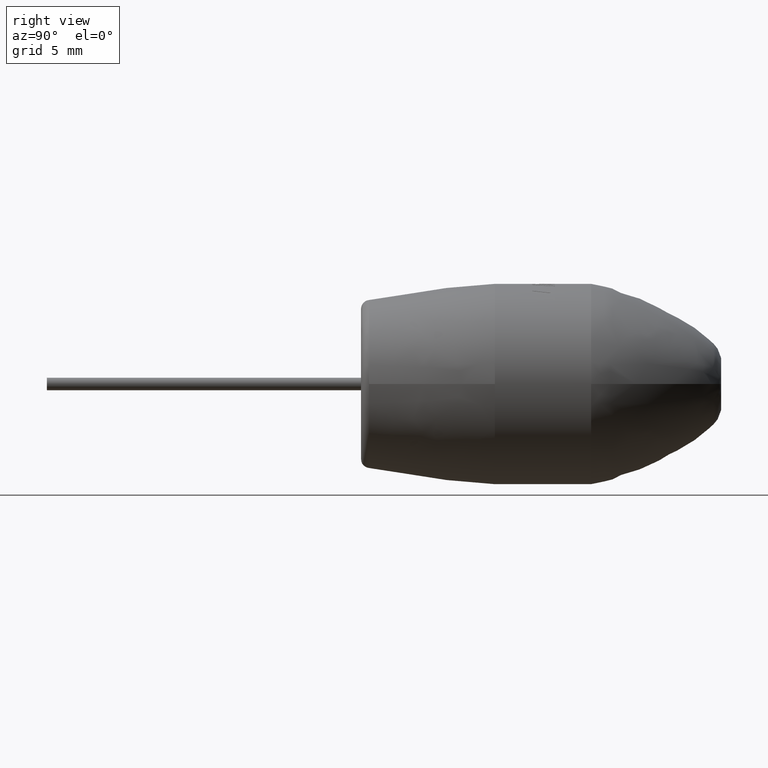
[diagram: clean part render]
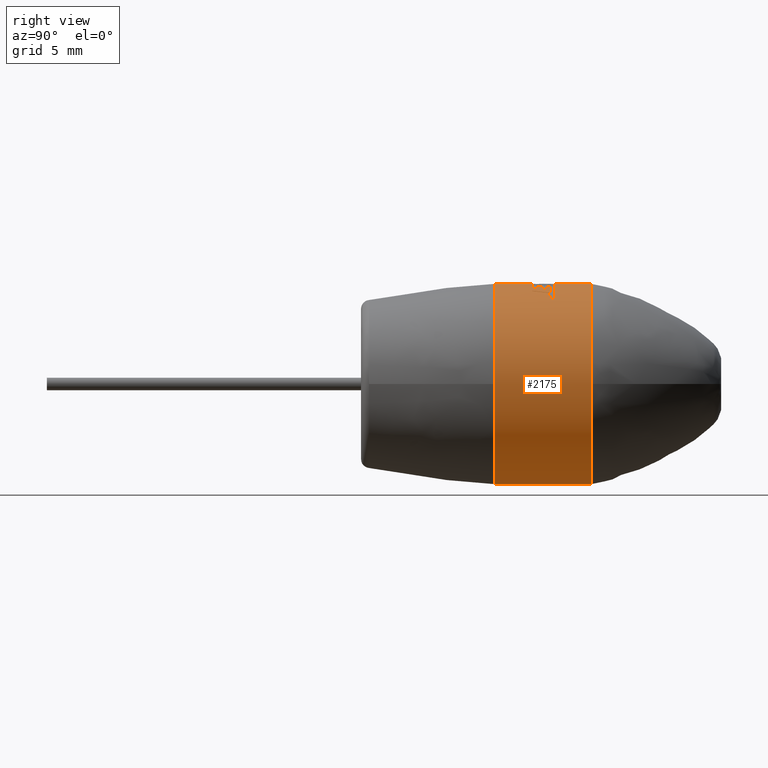
[diagram: same view with one face highlighted and labeled with its STEP entity id]
A machine part, right view. The second image highlights one B-rep face of the part: STEP entity #2175.
In plain terms, the highlighted cylindrical surface (partial cylindrical patch) has radius 4.45 mm, axis along (-0, -1, -0).
Its self-contained STEP definition (entity closure, byte-faithful):
#35 = CARTESIAN_POINT ( 'NONE',  ( 0.4946838417474491700, 8.506531242297525000, 4.422418783506824300 ) ) ;
#72 = EDGE_CURVE ( 'NONE', #266, #2234, #748, .T. ) ;
#76 = CARTESIAN_POINT ( 'NONE',  ( 0.4919056454715069500, 7.604746150764514200, 4.422728664066252000 ) ) ;
#78 = EDGE_CURVE ( 'NONE', #2897, #3358, #1538, .T. ) ;
#119 = ORIENTED_EDGE ( 'NONE', *, *, #1764, .F. ) ;
#128 = ORIENTED_EDGE ( 'NONE', *, *, #488, .F. ) ;
#147 = LINE ( 'NONE', #283, #1661 ) ;
#161 = CARTESIAN_POINT ( 'NONE',  ( 1.388579502531268600, 7.732628669408849300, 4.227845332898611200 ) ) ;
#163 = AXIS2_PLACEMENT_3D ( 'NONE', #676, #384, #2084 ) ;
#172 = CARTESIAN_POINT ( 'NONE',  ( 0.9949742120080948800, 7.963576136324040700, 4.337406437498996700 ) ) ;
#175 = VERTEX_POINT ( 'NONE', #3143 ) ;
#234 = EDGE_CURVE ( 'NONE', #1987, #1770, #147, .T. ) ;
#238 = LINE ( 'NONE', #927, #2197 ) ;
#245 = B_SPLINE_CURVE_WITH_KNOTS ( 'NONE', 3,
 ( #3596, #2120, #172, #1846 ),
 .UNSPECIFIED., .F., .F.,
 ( 4, 4 ),
 ( 0.0000000000000000000, 1.000000000000000000 ),
 .UNSPECIFIED. ) ;
#252 = CARTESIAN_POINT ( 'NONE',  ( 1.562906949584479800, 8.419606399378579900, 4.166511954493894400 ) ) ;
#254 = ORIENTED_EDGE ( 'NONE', *, *, #806, .T. ) ;
#257 = CARTESIAN_POINT ( 'NONE',  ( 1.484073355134235100, 8.233404122937400900, 4.195238524396510900 ) ) ;
#259 = VERTEX_POINT ( 'NONE', #2909 ) ;
#262 = CARTESIAN_POINT ( 'NONE',  ( 1.450583183327718500, 8.109187534407029200, 4.206973169489836000 ) ) ;
#265 = CARTESIAN_POINT ( 'NONE',  ( 1.271746608458683900, 8.420472816124405600, 4.267185517117510200 ) ) ;
#266 = VERTEX_POINT ( 'NONE', #866 ) ;
#271 = CARTESIAN_POINT ( 'NONE',  ( 0.0000000000000000000, 10.22080000000000200, -4.449999999999999300 ) ) ;
#280 = AXIS2_PLACEMENT_3D ( 'NONE', #509, #1341, #2819 ) ;
#283 = CARTESIAN_POINT ( 'NONE',  ( 5.449678256205721800E-016, 16.00000000000000000, 4.450000000000000200 ) ) ;
#291 = AXIS2_PLACEMENT_3D ( 'NONE', #3039, #3591, #1042 ) ;
#295 = CARTESIAN_POINT ( 'NONE',  ( 0.01965237131322186000, 7.604746150764514200, 4.449956604766137000 ) ) ;
#296 = CARTESIAN_POINT ( 'NONE',  ( 0.007395987010997595800, 8.338033352284698600, 4.449999999921686800 ) ) ;
#297 = VERTEX_POINT ( 'NONE', #1787 ) ;
#315 = AXIS2_PLACEMENT_3D ( 'NONE', #872, #1729, #901 ) ;
#320 = ORIENTED_EDGE ( 'NONE', *, *, #1851, .T. ) ;
#325 = CARTESIAN_POINT ( 'NONE',  ( 0.0000000000000000000, 5.948800000000001200, 0.0000000000000000000 ) ) ;
#384 = DIRECTION ( 'NONE',  ( -0.0000000000000000000, -1.000000000000000000, -0.0000000000000000000 ) ) ;
#391 = VERTEX_POINT ( 'NONE', #1203 ) ;
#394 = CARTESIAN_POINT ( 'NONE',  ( 0.0000000000000000000, 7.604746150764514200, 0.0000000000000000000 ) ) ;
#425 = EDGE_CURVE ( 'NONE', #1223, #3537, #915, .T. ) ;
#428 = B_SPLINE_CURVE_WITH_KNOTS ( 'NONE', 3,
 ( #2613, #3193, #1428, #3165 ),
 .UNSPECIFIED., .F., .F.,
 ( 4, 4 ),
 ( 0.0000000000000000000, 1.000000000000000000 ),
 .UNSPECIFIED. ) ;
#438 = CARTESIAN_POINT ( 'NONE',  ( 0.4946838417474491700, 8.506531242297525000, 4.422418783506824300 ) ) ;
#450 = DIRECTION ( 'NONE',  ( -0.0000000000000000000, -1.000000000000000000, -0.0000000000000000000 ) ) ;
#461 = VERTEX_POINT ( 'NONE', #1445 ) ;
#485 = CARTESIAN_POINT ( 'NONE',  ( 1.894274767862562900, 7.604746150764514200, 4.026688851133053900 ) ) ;
#488 = EDGE_CURVE ( 'NONE', #3529, #2733, #238, .T. ) ;
#500 = CIRCLE ( 'NONE', #1035, 4.449999999999999300 ) ;
#509 = CARTESIAN_POINT ( 'NONE',  ( 0.0000000000000000000, 8.612821759519611900, 0.0000000000000000000 ) ) ;
#518 = EDGE_CURVE ( 'NONE', #1735, #1770, #1842, .T. ) ;
#534 = ORIENTED_EDGE ( 'NONE', *, *, #571, .F. ) ;
#557 = FACE_OUTER_BOUND ( 'NONE', #3659, .T. ) ;
#571 = EDGE_CURVE ( 'NONE', #1402, #2296, #1881, .T. ) ;
#594 = DIRECTION ( 'NONE',  ( -0.0000000000000000000, -1.000000000000000000, -0.0000000000000000000 ) ) ;
#620 = CARTESIAN_POINT ( 'NONE',  ( 1.845918588710608700, 8.418181100462566800, 4.049084410561557800 ) ) ;
#630 = CARTESIAN_POINT ( 'NONE',  ( 1.774984807267662200, 8.147036112379527900, 4.081422088035392200 ) ) ;
#632 = B_SPLINE_CURVE_WITH_KNOTS ( 'NONE', 3,
 ( #2228, #1381, #3686, #2242 ),
 .UNSPECIFIED., .F., .F.,
 ( 4, 4 ),
 ( 0.0000000000000000000, 0.9535824357686437700 ),
 .UNSPECIFIED. ) ;
#654 = AXIS2_PLACEMENT_3D ( 'NONE', #747, #1905, #2193 ) ;
#661 = EDGE_CURVE ( 'NONE', #297, #391, #1588, .T. ) ;
#663 = ORIENTED_EDGE ( 'NONE', *, *, #3628, .T. ) ;
#667 = CARTESIAN_POINT ( 'NONE',  ( 2.389539844810840500, 8.612821759519611900, 3.754011098819685500 ) ) ;
#671 = DIRECTION ( 'NONE',  ( -0.0000000000000000000, -1.000000000000000000, -0.0000000000000000000 ) ) ;
#676 = CARTESIAN_POINT ( 'NONE',  ( 0.0000000000000000000, 7.604746150764514200, 0.0000000000000000000 ) ) ;
#679 = B_SPLINE_CURVE_WITH_KNOTS ( 'NONE', 3,
 ( #2548, #2599, #1734, #2635 ),
 .UNSPECIFIED., .F., .F.,
 ( 4, 4 ),
 ( 0.0000000000000000000, 1.000000000000000000 ),
 .UNSPECIFIED. ) ;
#689 = EDGE_CURVE ( 'NONE', #2234, #259, #2098, .T. ) ;
#695 = AXIS2_PLACEMENT_3D ( 'NONE', #1181, #3705, #3480 ) ;
#703 = VERTEX_POINT ( 'NONE', #913 ) ;
#707 = CARTESIAN_POINT ( 'NONE',  ( -5.018557794690432700E-011, 8.200639148900274100, 4.449999999968005300 ) ) ;
#747 = CARTESIAN_POINT ( 'NONE',  ( 0.0000000000000000000, 16.00000000000000000, 0.0000000000000000000 ) ) ;
#748 = B_SPLINE_CURVE_WITH_KNOTS ( 'NONE', 3,
 ( #2135, #3020, #1583, #3323 ),
 .UNSPECIFIED., .F., .F.,
 ( 4, 4 ),
 ( 0.0000000000000000000, 1.000000000000000000 ),
 .UNSPECIFIED. ) ;
#764 = CIRCLE ( 'NONE', #163, 4.450000000000001100 ) ;
#769 = CARTESIAN_POINT ( 'NONE',  ( 0.4088978527011152300, 8.205936203721831700, 4.432014650544069000 ) ) ;
#770 = CARTESIAN_POINT ( 'NONE',  ( 2.103126806645058400, 8.418181100460064000, 3.921652411314770600 ) ) ;
#777 = VERTEX_POINT ( 'NONE', #2942 ) ;
#782 = ORIENTED_EDGE ( 'NONE', *, *, #234, .T. ) ;
#786 = ORIENTED_EDGE ( 'NONE', *, *, #2503, .F. ) ;
#787 = CARTESIAN_POINT ( 'NONE',  ( 1.845918588710608700, 8.418181100462566800, 4.049084410561557800 ) ) ;
#806 = EDGE_CURVE ( 'NONE', #1332, #461, #764, .T. ) ;
#835 = CARTESIAN_POINT ( 'NONE',  ( 2.389539844810840500, 8.612821759519611900, 3.754011098819685500 ) ) ;
#838 = ORIENTED_EDGE ( 'NONE', *, *, #2552, .F. ) ;
#859 = DIRECTION ( 'NONE',  ( -0.0000000000000000000, -1.000000000000000000, -0.0000000000000000000 ) ) ;
#866 = CARTESIAN_POINT ( 'NONE',  ( 1.562906949584479800, 8.419606399378579900, 4.166511954493894400 ) ) ;
#872 = CARTESIAN_POINT ( 'NONE',  ( 0.0000000000000000000, 8.612821759519611900, 0.0000000000000000000 ) ) ;
#885 = DIRECTION ( 'NONE',  ( 0.0000000000000000000, 0.0000000000000000000, -1.000000000000000000 ) ) ;
#896 = VERTEX_POINT ( 'NONE', #2686 ) ;
#901 = DIRECTION ( 'NONE',  ( -0.09135912356441142100, 0.0000000000000000000, 0.9958180107537434300 ) ) ;
#913 = CARTESIAN_POINT ( 'NONE',  ( 1.069864503668400500, 8.233404122937400900, 4.319477971212536200 ) ) ;
#915 = CIRCLE ( 'NONE', #3132, 4.450000000000000200 ) ;
#927 = CARTESIAN_POINT ( 'NONE',  ( 0.0000000000000000000, 16.00000000000000000, -4.450000000000000200 ) ) ;
#938 = EDGE_CURVE ( 'NONE', #2042, #461, #1436, .T. ) ;
#966 = VECTOR ( 'NONE', #3006, 1000.000000000000000 ) ;
#990 = ORIENTED_EDGE ( 'NONE', *, *, #2559, .F. ) ;
#993 = CARTESIAN_POINT ( 'NONE',  ( 0.0000000000000000000, 10.22080000000000200, 0.0000000000000000000 ) ) ;
#1033 = CIRCLE ( 'NONE', #291, 4.450000000000000200 ) ;
#1035 = AXIS2_PLACEMENT_3D ( 'NONE', #3427, #2542, #1690 ) ;
#1042 = DIRECTION ( 'NONE',  ( 0.07646619451673346300, 0.0000000000000000000, 0.9970721744668884500 ) ) ;
#1068 = EDGE_CURVE ( 'NONE', #1989, #3527, #1033, .T. ) ;
#1090 = EDGE_CURVE ( 'NONE', #2617, #3222, #2974, .T. ) ;
#1094 = VERTEX_POINT ( 'NONE', #3607 ) ;
#1105 = CARTESIAN_POINT ( 'NONE',  ( 2.342159155940371800, 8.418159189099178300, 3.783753492002972100 ) ) ;
#1143 = ORIENTED_EDGE ( 'NONE', *, *, #1400, .F. ) ;
#1147 = CARTESIAN_POINT ( 'NONE',  ( 1.614820595703347700, 8.612821759519611900, 4.146667872363579500 ) ) ;
#1148 = CARTESIAN_POINT ( 'NONE',  ( 0.02218786922370886300, 8.612821759519611900, 4.449944684876353300 ) ) ;
#1170 = CARTESIAN_POINT ( 'NONE',  ( 0.01479197408475090700, 8.475427555902088600, 4.449981561549156700 ) ) ;
#1180 = ORIENTED_EDGE ( 'NONE', *, *, #2122, .F. ) ;
#1181 = CARTESIAN_POINT ( 'NONE',  ( 0.0000000000000000000, 8.612821759519611900, 0.0000000000000000000 ) ) ;
#1189 = DIRECTION ( 'NONE',  ( 0.3664419108108632500, 0.0000000000000000000, 0.9304409309576203700 ) ) ;
#1200 = CARTESIAN_POINT ( 'NONE',  ( 0.0000000000000000000, 7.604746150764514200, 0.0000000000000000000 ) ) ;
#1203 = CARTESIAN_POINT ( 'NONE',  ( 2.342159155940371800, 8.418159189099178300, 3.783753492002972100 ) ) ;
#1223 = VERTEX_POINT ( 'NONE', #295 ) ;
#1248 = EDGE_CURVE ( 'NONE', #1332, #1989, #1821, .T. ) ;
#1259 = DIRECTION ( 'NONE',  ( -0.0000000000000000000, -1.000000000000000000, -0.0000000000000000000 ) ) ;
#1275 = CARTESIAN_POINT ( 'NONE',  ( 0.0000000000000000000, 5.948800000000001200, 0.0000000000000000000 ) ) ;
#1286 = VERTEX_POINT ( 'NONE', #2048 ) ;
#1303 = CARTESIAN_POINT ( 'NONE',  ( 5.449678256205721800E-016, 16.00000000000000000, 4.450000000000000200 ) ) ;
#1311 = CIRCLE ( 'NONE', #3573, 4.450000000000000200 ) ;
#1324 = DIRECTION ( 'NONE',  ( -0.0000000000000000000, -1.000000000000000000, -0.0000000000000000000 ) ) ;
#1332 = VERTEX_POINT ( 'NONE', #76 ) ;
#1338 = CARTESIAN_POINT ( 'NONE',  ( 2.358014828068803600, 8.483046712576463500, 3.773938764979215300 ) ) ;
#1339 = DIRECTION ( 'NONE',  ( 0.1375917790808720800, 0.0000000000000000000, 0.9904890218116305700 ) ) ;
#1341 = DIRECTION ( 'NONE',  ( -0.0000000000000000000, -1.000000000000000000, -0.0000000000000000000 ) ) ;
#1352 = CYLINDRICAL_SURFACE ( 'NONE', #654, 4.450000000000000200 ) ;
#1381 = CARTESIAN_POINT ( 'NONE',  ( 0.2270712675944245600, 8.383904013653880900, 4.445652820121064300 ) ) ;
#1398 = CARTESIAN_POINT ( 'NONE',  ( 5.449678256205721800E-016, 7.604746150764514200, 4.450000000000000200 ) ) ;
#1400 = EDGE_CURVE ( 'NONE', #2733, #896, #1311, .T. ) ;
#1402 = VERTEX_POINT ( 'NONE', #667 ) ;
#1428 = CARTESIAN_POINT ( 'NONE',  ( 0.7080167958499931100, 7.940771367893335200, 4.394377538358650500 ) ) ;
#1436 = B_SPLINE_CURVE_WITH_KNOTS ( 'NONE', 3,
 ( #3065, #769, #1611, #3631 ),
 .UNSPECIFIED., .F., .F.,
 ( 4, 4 ),
 ( 0.0000000000000000000, 1.000000000000000000 ),
 .UNSPECIFIED. ) ;
#1437 = AXIS2_PLACEMENT_3D ( 'NONE', #3024, #2187, #1339 ) ;
#1445 = CARTESIAN_POINT ( 'NONE',  ( 0.2366337199741964700, 7.604746150764514200, 4.443703914818265800 ) ) ;
#1459 = CARTESIAN_POINT ( 'NONE',  ( 1.484073355134235100, 8.233404122937400900, 4.195238524396510900 ) ) ;
#1465 = CARTESIAN_POINT ( 'NONE',  ( 0.01965237131322186000, 7.604746150764514200, 4.449956604766137000 ) ) ;
#1471 = VERTEX_POINT ( 'NONE', #3595 ) ;
#1475 = CIRCLE ( 'NONE', #3649, 4.450000000000000200 ) ;
#1486 = CARTESIAN_POINT ( 'NONE',  ( 2.263932695904203200, 8.418166492889442400, 3.832175996269635100 ) ) ;
#1498 = VECTOR ( 'NONE', #450, 1000.000000000000000 ) ;
#1517 = ORIENTED_EDGE ( 'NONE', *, *, #2597, .F. ) ;
#1538 = LINE ( 'NONE', #1871, #1498 ) ;
#1543 = DIRECTION ( 'NONE',  ( -0.05594639297538302900, 0.0000000000000000000, 0.9984337740246189700 ) ) ;
#1544 = EDGE_CURVE ( 'NONE', #1094, #297, #2707, .T. ) ;
#1569 = CARTESIAN_POINT ( 'NONE',  ( 5.449678256205721800E-016, 10.22080000000000200, 4.449999999999999300 ) ) ;
#1575 = FACE_BOUND ( 'NONE', #3574, .T. ) ;
#1583 = CARTESIAN_POINT ( 'NONE',  ( 1.752966453158286500, 8.418656200427184500, 4.091459934872393200 ) ) ;
#1588 = B_SPLINE_CURVE_WITH_KNOTS ( 'NONE', 3,
 ( #1995, #3516, #1486, #2060 ),
 .UNSPECIFIED., .F., .F.,
 ( 4, 4 ),
 ( 0.0000000000000000000, 1.000000000000000000 ),
 .UNSPECIFIED. ) ;
#1611 = CARTESIAN_POINT ( 'NONE',  ( 0.3228325975620551200, 7.905341189340206600, 4.439113698761520500 ) ) ;
#1643 = ORIENTED_EDGE ( 'NONE', *, *, #3602, .F. ) ;
#1661 = VECTOR ( 'NONE', #859, 1000.000000000000000 ) ;
#1662 = CARTESIAN_POINT ( 'NONE',  ( 0.6122834169098806400, 7.604746150764514200, 4.407676147061755100 ) ) ;
#1679 = ORIENTED_EDGE ( 'NONE', *, *, #2044, .F. ) ;
#1690 = DIRECTION ( 'NONE',  ( 0.0000000000000000000, 0.0000000000000000000, -1.000000000000000000 ) ) ;
#1711 = ORIENTED_EDGE ( 'NONE', *, *, #72, .F. ) ;
#1729 = DIRECTION ( 'NONE',  ( -0.0000000000000000000, -1.000000000000000000, -0.0000000000000000000 ) ) ;
#1734 = CARTESIAN_POINT ( 'NONE',  ( 1.105144063355162600, 8.358405392160774400, 4.310624937524458700 ) ) ;
#1735 = VERTEX_POINT ( 'NONE', #1148 ) ;
#1764 = EDGE_CURVE ( 'NONE', #1471, #266, #3129, .T. ) ;
#1770 = VERTEX_POINT ( 'NONE', #2233 ) ;
#1776 = B_SPLINE_CURVE_WITH_KNOTS ( 'NONE', 3,
 ( #1465, #2968, #2324, #35 ),
 .UNSPECIFIED., .F., .F.,
 ( 4, 4 ),
 ( 0.0000000000000000000, 1.000000000000000000 ),
 .UNSPECIFIED. ) ;
#1787 = CARTESIAN_POINT ( 'NONE',  ( 2.103126806645058400, 8.418181100460064000, 3.921652411314770600 ) ) ;
#1791 = CARTESIAN_POINT ( 'NONE',  ( 0.9484329702689341400, 7.796569928735947600, 4.347755156503968300 ) ) ;
#1821 = B_SPLINE_CURVE_WITH_KNOTS ( 'NONE', 3,
 ( #2892, #2878, #2601, #3192 ),
 .UNSPECIFIED., .F., .F.,
 ( 4, 4 ),
 ( 0.0000000000000000000, 1.000000000000000000 ),
 .UNSPECIFIED. ) ;
#1825 = EDGE_CURVE ( 'NONE', #703, #1471, #679, .T. ) ;
#1842 = CIRCLE ( 'NONE', #315, 4.449999999999999300 ) ;
#1846 = CARTESIAN_POINT ( 'NONE',  ( 1.018180588921109100, 8.047079240137435400, 4.331952018241230100 ) ) ;
#1851 = EDGE_CURVE ( 'NONE', #1094, #259, #3033, .T. ) ;
#1858 = VERTEX_POINT ( 'NONE', #2014 ) ;
#1871 = CARTESIAN_POINT ( 'NONE',  ( 5.449678256205721800E-016, 16.00000000000000000, 4.450000000000000200 ) ) ;
#1878 = EDGE_CURVE ( 'NONE', #3529, #1858, #2158, .T. ) ;
#1879 = CARTESIAN_POINT ( 'NONE',  ( 2.034445248460541800, 8.147036112386034600, 3.958485361048727800 ) ) ;
#1881 = CIRCLE ( 'NONE', #695, 4.450000000000000200 ) ;
#1905 = DIRECTION ( 'NONE',  ( -0.0000000000000000000, -1.000000000000000000, -0.0000000000000000000 ) ) ;
#1917 = CARTESIAN_POINT ( 'NONE',  ( 0.3402745655994647300, 8.612821759519611900, 4.436971176377653600 ) ) ;
#1935 = CARTESIAN_POINT ( 'NONE',  ( 0.0000000000000000000, 7.796569928735947600, 0.0000000000000000000 ) ) ;
#1951 = CARTESIAN_POINT ( 'NONE',  ( 1.418730699544806400, 8.420039610031707900, 4.220594137771683100 ) ) ;
#1957 = DIRECTION ( 'NONE',  ( 0.2131310045548169000, 0.0000000000000000000, 0.9770236306750490500 ) ) ;
#1987 = VERTEX_POINT ( 'NONE', #1569 ) ;
#1989 = VERTEX_POINT ( 'NONE', #2997 ) ;
#1995 = CARTESIAN_POINT ( 'NONE',  ( 2.103126806645058400, 8.418181100460064000, 3.921652411314770600 ) ) ;
#2002 = CARTESIAN_POINT ( 'NONE',  ( 1.122742311527996900, 8.420906026777533500, 4.306036425984430600 ) ) ;
#2008 = CARTESIAN_POINT ( 'NONE',  ( 0.0000000000000000000, 8.047079240137435400, 0.0000000000000000000 ) ) ;
#2011 = EDGE_CURVE ( 'NONE', #3537, #1286, #3380, .T. ) ;
#2014 = CARTESIAN_POINT ( 'NONE',  ( 4.449999999999999300, 10.22080000000000200, 0.0000000000000000000 ) ) ;
#2042 = VERTEX_POINT ( 'NONE', #438 ) ;
#2044 = EDGE_CURVE ( 'NONE', #2617, #175, #3189, .T. ) ;
#2048 = CARTESIAN_POINT ( 'NONE',  ( 5.449678256205721800E-016, 5.948800000000001200, 4.450000000000000200 ) ) ;
#2060 = CARTESIAN_POINT ( 'NONE',  ( 2.342159155940371800, 8.418159189099178300, 3.783753492002972100 ) ) ;
#2084 = DIRECTION ( 'NONE',  ( 0.05317611684813402400, 0.0000000000000000000, 0.9985851493973628700 ) ) ;
#2098 = B_SPLINE_CURVE_WITH_KNOTS ( 'NONE', 3,
 ( #620, #630, #2616, #2934 ),
 .UNSPECIFIED., .F., .F.,
 ( 4, 4 ),
 ( 0.0000000000000000000, 1.000000000000000000 ),
 .UNSPECIFIED. ) ;
#2120 = CARTESIAN_POINT ( 'NONE',  ( 0.9717240049947301100, 7.880073032549343100, 4.342674377009617900 ) ) ;
#2122 = EDGE_CURVE ( 'NONE', #3388, #2972, #245, .T. ) ;
#2127 = CARTESIAN_POINT ( 'NONE',  ( 1.018180588921109100, 8.047079240137435400, 4.331952018241230100 ) ) ;
#2135 = CARTESIAN_POINT ( 'NONE',  ( 1.562906949584479800, 8.419606399378579900, 4.166511954493894400 ) ) ;
#2145 = DIRECTION ( 'NONE',  ( 0.0000000000000000000, 0.0000000000000000000, -1.000000000000000000 ) ) ;
#2155 = CARTESIAN_POINT ( 'NONE',  ( 1.405794053546186600, 7.796569928735947600, 4.222113579596620700 ) ) ;
#2158 = CIRCLE ( 'NONE', #2592, 4.449999999999999300 ) ;
#2170 = ORIENTED_EDGE ( 'NONE', *, *, #1878, .T. ) ;
#2175 = ADVANCED_FACE ( 'NONE', ( #1575, #557 ), #1352, .T. ) ;
#2187 = DIRECTION ( 'NONE',  ( -0.0000000000000000000, -1.000000000000000000, -0.0000000000000000000 ) ) ;
#2193 = DIRECTION ( 'NONE',  ( 0.0000000000000000000, 0.0000000000000000000, -1.000000000000000000 ) ) ;
#2197 = VECTOR ( 'NONE', #3601, 1000.000000000000000 ) ;
#2228 = CARTESIAN_POINT ( 'NONE',  ( 0.3402745655994647300, 8.612821759519611900, 4.436971176377653600 ) ) ;
#2233 = CARTESIAN_POINT ( 'NONE',  ( 5.449678256205721800E-016, 8.612821759519611900, 4.450000000000000200 ) ) ;
#2234 = VERTEX_POINT ( 'NONE', #787 ) ;
#2242 = CARTESIAN_POINT ( 'NONE',  ( -1.759929833002849700E-010, 7.926068701618295800, 4.449999992478763200 ) ) ;
#2244 = CIRCLE ( 'NONE', #3666, 4.450000000000000200 ) ;
#2278 = CARTESIAN_POINT ( 'NONE',  ( 0.02218786922370886300, 8.612821759519611900, 4.449944684876353300 ) ) ;
#2290 = DIRECTION ( 'NONE',  ( 0.2288046267238446900, 0.0000000000000000000, 0.9734723636497143500 ) ) ;
#2296 = VERTEX_POINT ( 'NONE', #1147 ) ;
#2324 = CARTESIAN_POINT ( 'NONE',  ( 0.3369819170787413700, 8.205935949304862500, 4.440059038255431500 ) ) ;
#2382 = EDGE_CURVE ( 'NONE', #1223, #2042, #1776, .T. ) ;
#2397 = DIRECTION ( 'NONE',  ( -0.0000000000000000000, -1.000000000000000000, -0.0000000000000000000 ) ) ;
#2409 = ORIENTED_EDGE ( 'NONE', *, *, #2382, .F. ) ;
#2439 = CARTESIAN_POINT ( 'NONE',  ( 1.371329896527054600, 7.668687410091616000, 4.233471803219393000 ) ) ;
#2441 = B_SPLINE_CURVE_WITH_KNOTS ( 'NONE', 3,
 ( #2893, #296, #1170, #2278 ),
 .UNSPECIFIED., .F., .F.,
 ( 4, 4 ),
 ( 0.4276689569734712400, 1.000000000000000000 ),
 .UNSPECIFIED. ) ;
#2470 = ORIENTED_EDGE ( 'NONE', *, *, #425, .T. ) ;
#2489 = CARTESIAN_POINT ( 'NONE',  ( 2.373808807026486400, 8.547934236042332000, 3.764024372780904800 ) ) ;
#2503 = EDGE_CURVE ( 'NONE', #3559, #703, #3202, .T. ) ;
#2524 = ORIENTED_EDGE ( 'NONE', *, *, #2011, .T. ) ;
#2542 = DIRECTION ( 'NONE',  ( -0.0000000000000000000, -1.000000000000000000, -0.0000000000000000000 ) ) ;
#2548 = CARTESIAN_POINT ( 'NONE',  ( 1.069864503668400500, 8.233404122937400900, 4.319477971212536200 ) ) ;
#2552 = EDGE_CURVE ( 'NONE', #175, #3388, #2244, .T. ) ;
#2559 = EDGE_CURVE ( 'NONE', #3527, #3358, #632, .T. ) ;
#2572 = ORIENTED_EDGE ( 'NONE', *, *, #3185, .F. ) ;
#2581 = EDGE_CURVE ( 'NONE', #1858, #1987, #500, .T. ) ;
#2591 = DIRECTION ( 'NONE',  ( -0.0000000000000000000, -1.000000000000000000, -0.0000000000000000000 ) ) ;
#2592 = AXIS2_PLACEMENT_3D ( 'NONE', #993, #2397, #3002 ) ;
#2597 = EDGE_CURVE ( 'NONE', #777, #3559, #2868, .T. ) ;
#2599 = CARTESIAN_POINT ( 'NONE',  ( 1.087517685804942000, 8.295904757554160000, 4.315105564854510700 ) ) ;
#2601 = CARTESIAN_POINT ( 'NONE',  ( 0.6835930405708954300, 8.276796542427614900, 4.398242148216366100 ) ) ;
#2609 = DIRECTION ( 'NONE',  ( -0.0000000000000000000, -1.000000000000000000, -0.0000000000000000000 ) ) ;
#2613 = CARTESIAN_POINT ( 'NONE',  ( 0.8979810290462507700, 8.612821759519611900, 4.358455009687840900 ) ) ;
#2616 = CARTESIAN_POINT ( 'NONE',  ( 1.703201083010253300, 7.875891138847552300, 4.111895353430933000 ) ) ;
#2617 = VERTEX_POINT ( 'NONE', #2914 ) ;
#2619 = ORIENTED_EDGE ( 'NONE', *, *, #1090, .T. ) ;
#2635 = CARTESIAN_POINT ( 'NONE',  ( 1.122742311527996900, 8.420906026777533500, 4.306036425984430600 ) ) ;
#2643 = CIRCLE ( 'NONE', #280, 4.450000000000001100 ) ;
#2682 = ORIENTED_EDGE ( 'NONE', *, *, #1825, .F. ) ;
#2686 = CARTESIAN_POINT ( 'NONE',  ( 4.450000000000000200, 5.948800000000001200, 0.0000000000000000000 ) ) ;
#2707 = B_SPLINE_CURVE_WITH_KNOTS ( 'NONE', 3,
 ( #485, #3355, #1879, #770 ),
 .UNSPECIFIED., .F., .F.,
 ( 4, 4 ),
 ( 0.0000000000000000000, 1.000000000000000000 ),
 .UNSPECIFIED. ) ;
#2715 = ORIENTED_EDGE ( 'NONE', *, *, #661, .F. ) ;
#2722 = CARTESIAN_POINT ( 'NONE',  ( 1.354046525896037200, 7.604746150764514200, 4.238992569668986300 ) ) ;
#2733 = VERTEX_POINT ( 'NONE', #2985 ) ;
#2752 = EDGE_CURVE ( 'NONE', #391, #1402, #3484, .T. ) ;
#2761 = ORIENTED_EDGE ( 'NONE', *, *, #689, .F. ) ;
#2819 = DIRECTION ( 'NONE',  ( 0.2017934896733145900, 0.0000000000000000000, 0.9794280920646832900 ) ) ;
#2842 = DIRECTION ( 'NONE',  ( -0.0000000000000000000, -1.000000000000000000, -0.0000000000000000000 ) ) ;
#2868 = B_SPLINE_CURVE_WITH_KNOTS ( 'NONE', 3,
 ( #3118, #262, #3183, #1459 ),
 .UNSPECIFIED., .F., .F.,
 ( 4, 4 ),
 ( 0.0000000000000000000, 1.000000000000000000 ),
 .UNSPECIFIED. ) ;
#2878 = CARTESIAN_POINT ( 'NONE',  ( 0.5879233109578183600, 7.940771367856515700, 4.412049367345778400 ) ) ;
#2892 = CARTESIAN_POINT ( 'NONE',  ( 0.4919056454715069500, 7.604746150764514200, 4.422728664066252000 ) ) ;
#2893 = CARTESIAN_POINT ( 'NONE',  ( -5.018557794690432700E-011, 8.200639148900274100, 4.449999999968005300 ) ) ;
#2897 = VERTEX_POINT ( 'NONE', #707 ) ;
#2899 = ORIENTED_EDGE ( 'NONE', *, *, #1248, .F. ) ;
#2909 = CARTESIAN_POINT ( 'NONE',  ( 1.630666503108341600, 7.604746150764514200, 4.140462142761411000 ) ) ;
#2914 = CARTESIAN_POINT ( 'NONE',  ( 1.354046525896037200, 7.604746150764514200, 4.238992569668986300 ) ) ;
#2934 = CARTESIAN_POINT ( 'NONE',  ( 1.630666503108341600, 7.604746150764514200, 4.140462142761411000 ) ) ;
#2940 = AXIS2_PLACEMENT_3D ( 'NONE', #1200, #2609, #1189 ) ;
#2942 = CARTESIAN_POINT ( 'NONE',  ( 1.433786209884847300, 8.047079240137437100, 4.212690008099818000 ) ) ;
#2955 = ORIENTED_EDGE ( 'NONE', *, *, #2752, .F. ) ;
#2967 = ORIENTED_EDGE ( 'NONE', *, *, #518, .F. ) ;
#2968 = CARTESIAN_POINT ( 'NONE',  ( 0.1783362851662142800, 7.905341443757178500, 4.449255808000358100 ) ) ;
#2972 = VERTEX_POINT ( 'NONE', #2127 ) ;
#2974 = CIRCLE ( 'NONE', #1437, 4.449999999999999300 ) ;
#2985 = CARTESIAN_POINT ( 'NONE',  ( 0.0000000000000000000, 5.948800000000001200, -4.450000000000000200 ) ) ;
#2997 = CARTESIAN_POINT ( 'NONE',  ( 0.7787120750486555800, 8.612821759519611900, 4.381336269241772100 ) ) ;
#3002 = DIRECTION ( 'NONE',  ( 0.0000000000000000000, 0.0000000000000000000, -1.000000000000000000 ) ) ;
#3006 = DIRECTION ( 'NONE',  ( -0.0000000000000000000, -1.000000000000000000, -0.0000000000000000000 ) ) ;
#3008 = ORIENTED_EDGE ( 'NONE', *, *, #3693, .F. ) ;
#3020 = CARTESIAN_POINT ( 'NONE',  ( 1.658554791097565500, 8.419131299413960400, 4.130633339996624200 ) ) ;
#3024 = CARTESIAN_POINT ( 'NONE',  ( 0.0000000000000000000, 7.604746150764514200, 0.0000000000000000000 ) ) ;
#3033 = CIRCLE ( 'NONE', #2940, 4.450000000000000200 ) ;
#3039 = CARTESIAN_POINT ( 'NONE',  ( 0.0000000000000000000, 8.612821759519611900, 0.0000000000000000000 ) ) ;
#3065 = CARTESIAN_POINT ( 'NONE',  ( 0.4946838417474491700, 8.506531242297525000, 4.422418783506824300 ) ) ;
#3106 = CIRCLE ( 'NONE', #3214, 4.450000000000001100 ) ;
#3118 = CARTESIAN_POINT ( 'NONE',  ( 1.433786209884847300, 8.047079240137437100, 4.212690008099818000 ) ) ;
#3129 = B_SPLINE_CURVE_WITH_KNOTS ( 'NONE', 3,
 ( #2002, #265, #1951, #252 ),
 .UNSPECIFIED., .F., .F.,
 ( 4, 4 ),
 ( 0.0000000000000000000, 1.000000000000000000 ),
 .UNSPECIFIED. ) ;
#3132 = AXIS2_PLACEMENT_3D ( 'NONE', #394, #671, #1543 ) ;
#3133 = ORIENTED_EDGE ( 'NONE', *, *, #1068, .F. ) ;
#3143 = CARTESIAN_POINT ( 'NONE',  ( 1.405794053546186600, 7.796569928735947600, 4.222113579596620700 ) ) ;
#3165 = CARTESIAN_POINT ( 'NONE',  ( 0.6122834169098806400, 7.604746150764514200, 4.407676147061755100 ) ) ;
#3183 = CARTESIAN_POINT ( 'NONE',  ( 1.467345964809926700, 8.171295828667808800, 4.201155869533592700 ) ) ;
#3185 = EDGE_CURVE ( 'NONE', #2296, #3481, #2643, .T. ) ;
#3189 = B_SPLINE_CURVE_WITH_KNOTS ( 'NONE', 3,
 ( #2722, #2439, #161, #2155 ),
 .UNSPECIFIED., .F., .F.,
 ( 4, 4 ),
 ( 0.0000000000000000000, 1.000000000000000000 ),
 .UNSPECIFIED. ) ;
#3192 = CARTESIAN_POINT ( 'NONE',  ( 0.7787120750486555800, 8.612821759519611900, 4.381336269241772100 ) ) ;
#3193 = CARTESIAN_POINT ( 'NONE',  ( 0.8033167181680525000, 8.276796542390791000, 4.377958883218118700 ) ) ;
#3202 = CIRCLE ( 'NONE', #3497, 4.450000000000000200 ) ;
#3214 = AXIS2_PLACEMENT_3D ( 'NONE', #2008, #594, #2290 ) ;
#3222 = VERTEX_POINT ( 'NONE', #1662 ) ;
#3265 = ORIENTED_EDGE ( 'NONE', *, *, #1544, .F. ) ;
#3323 = CARTESIAN_POINT ( 'NONE',  ( 1.845918588710608700, 8.418181100462566800, 4.049084410561557800 ) ) ;
#3355 = CARTESIAN_POINT ( 'NONE',  ( 1.964795873665338100, 7.875891138838544400, 3.993513615533119700 ) ) ;
#3358 = VERTEX_POINT ( 'NONE', #3456 ) ;
#3380 = LINE ( 'NONE', #1303, #966 ) ;
#3388 = VERTEX_POINT ( 'NONE', #1791 ) ;
#3403 = CARTESIAN_POINT ( 'NONE',  ( 0.8979810290462507700, 8.612821759519611900, 4.358455009687840900 ) ) ;
#3427 = CARTESIAN_POINT ( 'NONE',  ( 0.0000000000000000000, 10.22080000000000200, 0.0000000000000000000 ) ) ;
#3447 = ORIENTED_EDGE ( 'NONE', *, *, #78, .T. ) ;
#3456 = CARTESIAN_POINT ( 'NONE',  ( -1.759929833002849700E-010, 7.926068701618295800, 4.449999992478763200 ) ) ;
#3480 = DIRECTION ( 'NONE',  ( 0.3628810327423249700, 0.0000000000000000000, 0.9318354769356356200 ) ) ;
#3481 = VERTEX_POINT ( 'NONE', #3403 ) ;
#3484 = B_SPLINE_CURVE_WITH_KNOTS ( 'NONE', 3,
 ( #1105, #1338, #2489, #835 ),
 .UNSPECIFIED., .F., .F.,
 ( 4, 4 ),
 ( 0.0000000000000000000, 1.000000000000000000 ),
 .UNSPECIFIED. ) ;
#3492 = ORIENTED_EDGE ( 'NONE', *, *, #2581, .T. ) ;
#3497 = AXIS2_PLACEMENT_3D ( 'NONE', #3641, #1324, #3620 ) ;
#3516 = CARTESIAN_POINT ( 'NONE',  ( 2.184204230498868200, 8.418173796669799800, 3.878171733876684300 ) ) ;
#3523 = ORIENTED_EDGE ( 'NONE', *, *, #938, .F. ) ;
#3527 = VERTEX_POINT ( 'NONE', #1917 ) ;
#3529 = VERTEX_POINT ( 'NONE', #271 ) ;
#3537 = VERTEX_POINT ( 'NONE', #1398 ) ;
#3559 = VERTEX_POINT ( 'NONE', #257 ) ;
#3573 = AXIS2_PLACEMENT_3D ( 'NONE', #1275, #1259, #2145 ) ;
#3574 = EDGE_LOOP ( 'NONE', ( #320, #2761, #1711, #119, #2682, #786, #1517, #663, #1180, #838, #1679, #2619, #1643, #2572, #534, #2955, #2715, #3265 ) ) ;
#3591 = DIRECTION ( 'NONE',  ( -0.0000000000000000000, -1.000000000000000000, -0.0000000000000000000 ) ) ;
#3595 = CARTESIAN_POINT ( 'NONE',  ( 1.122742311527996900, 8.420906026777533500, 4.306036425984430600 ) ) ;
#3596 = CARTESIAN_POINT ( 'NONE',  ( 0.9484329702689341400, 7.796569928735947600, 4.347755156503968300 ) ) ;
#3601 = DIRECTION ( 'NONE',  ( -0.0000000000000000000, -1.000000000000000000, -0.0000000000000000000 ) ) ;
#3602 = EDGE_CURVE ( 'NONE', #3481, #3222, #428, .T. ) ;
#3607 = CARTESIAN_POINT ( 'NONE',  ( 1.894274767862562900, 7.604746150764514200, 4.026688851133053900 ) ) ;
#3620 = DIRECTION ( 'NONE',  ( 0.2404189895884043800, 0.0000000000000000000, 0.9706692070140530100 ) ) ;
#3628 = EDGE_CURVE ( 'NONE', #777, #2972, #3106, .T. ) ;
#3631 = CARTESIAN_POINT ( 'NONE',  ( 0.2366337199741964700, 7.604746150764514200, 4.443703914818265800 ) ) ;
#3638 = ORIENTED_EDGE ( 'NONE', *, *, #3672, .F. ) ;
#3641 = CARTESIAN_POINT ( 'NONE',  ( 0.0000000000000000000, 8.233404122937400900, 0.0000000000000000000 ) ) ;
#3649 = AXIS2_PLACEMENT_3D ( 'NONE', #325, #2591, #885 ) ;
#3659 = EDGE_LOOP ( 'NONE', ( #2170, #3492, #782, #2967, #3638, #3447, #990, #3133, #2899, #254, #3523, #2409, #2470, #2524, #3008, #1143, #128 ) ) ;
#3666 = AXIS2_PLACEMENT_3D ( 'NONE', #1935, #2842, #1957 ) ;
#3672 = EDGE_CURVE ( 'NONE', #2897, #1735, #2441, .T. ) ;
#3686 = CARTESIAN_POINT ( 'NONE',  ( 0.1135356970407959000, 8.154986432298928300, 4.449999788968089100 ) ) ;
#3693 = EDGE_CURVE ( 'NONE', #896, #1286, #1475, .T. ) ;
#3705 = DIRECTION ( 'NONE',  ( -0.0000000000000000000, -1.000000000000000000, -0.0000000000000000000 ) ) ;